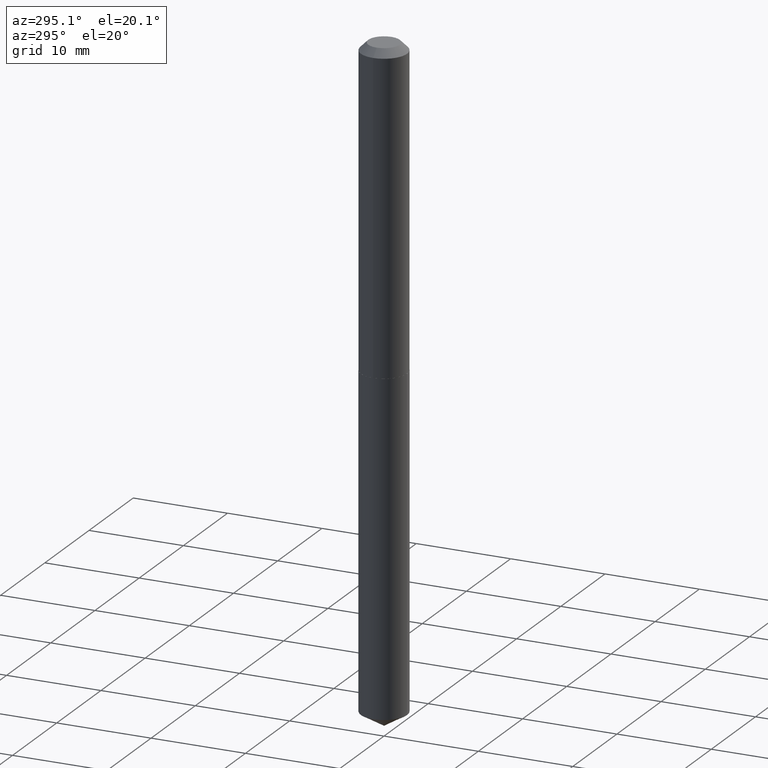
[diagram: clean part render]
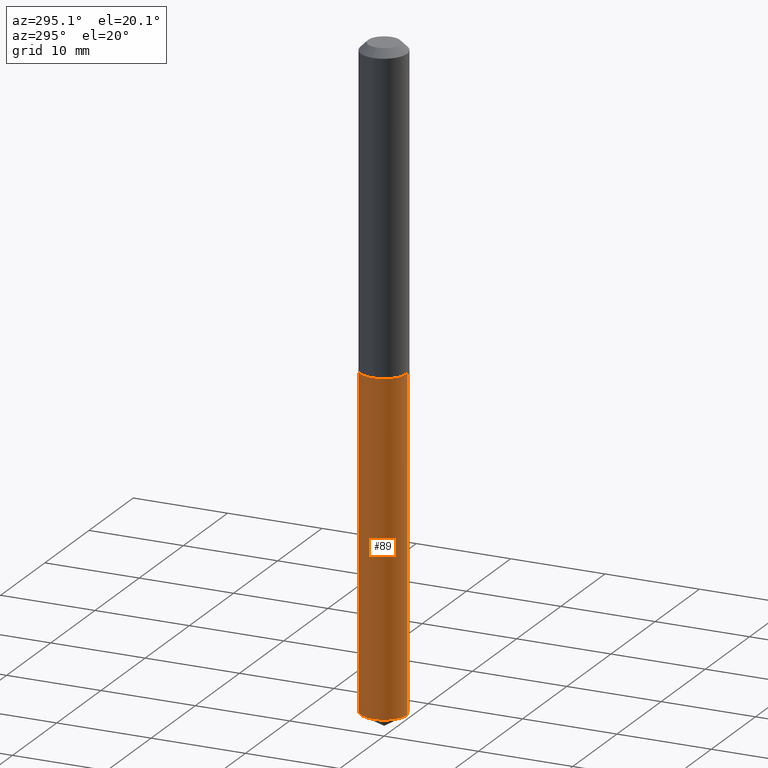
[diagram: same view with one face highlighted and labeled with its STEP entity id]
A machine part, auxiliary view. The second image highlights one B-rep face of the part: STEP entity #89.
In plain terms, the highlighted cylindrical surface (edge-blend (fillet) strip) has radius 2.4575 mm, axis along (-0, 0, 1).
Its self-contained STEP definition (entity closure, byte-faithful):
#4 = DIRECTION ( 'NONE',  ( -2.445415493139380021E-29, 3.491557686159059033E-15, 1.000000000000000000 ) ) ;
#14 = VERTEX_POINT ( 'NONE', #48 ) ;
#18 = ORIENTED_EDGE ( 'NONE', *, *, #98, .T. ) ;
#21 = CARTESIAN_POINT ( 'NONE',  ( -6.756016390660803673E-16, -0.09675000000000941180, -2.691866735109083031 ) ) ;
#29 = DIRECTION ( 'NONE',  ( -6.982962677686265922E-15, -1.000000000000000000, 2.823615497327403880E-15 ) ) ;
#32 = CARTESIAN_POINT ( 'NONE',  ( -6.756016390661139925E-16, -0.09675000000000461009, -1.318499999999999561 ) ) ;
#42 = AXIS2_PLACEMENT_3D ( 'NONE', #143, #367, #29 ) ;
#48 = CARTESIAN_POINT ( 'NONE',  ( 6.874500968479628186E-16, 0.09674999999999060740, -2.691866735109083919 ) ) ;
#51 = AXIS2_PLACEMENT_3D ( 'NONE', #167, #328, #146 ) ;
#60 = DIRECTION ( 'NONE',  ( -6.982962677686265922E-15, -1.000000000000000000, 2.823615497327403880E-15 ) ) ;
#63 = CARTESIAN_POINT ( 'NONE',  ( 6.874500968479290948E-16, 0.09674999999999539524, -1.318500000000000227 ) ) ;
#74 = VERTEX_POINT ( 'NONE', #114 ) ;
#78 = VERTEX_POINT ( 'NONE', #32 ) ;
#84 = VECTOR ( 'NONE', #229, 39.37007874015748143 ) ;
#89 = ADVANCED_FACE ( 'NONE', ( #235 ), #231, .T. ) ;
#98 = EDGE_CURVE ( 'NONE', #14, #315, #169, .T. ) ;
#114 = CARTESIAN_POINT ( 'NONE',  ( 6.874500968479629173E-16, 0.09674999999999539524, -1.318500000000000227 ) ) ;
#143 = CARTESIAN_POINT ( 'NONE',  ( 3.224350620955102598E-29, -4.603518145264687138E-15, -1.318499999999999783 ) ) ;
#146 = DIRECTION ( 'NONE',  ( -6.982962677686265922E-15, -1.000000000000000000, 5.647230994654807760E-15 ) ) ;
#167 = CARTESIAN_POINT ( 'NONE',  ( 6.582802912753103572E-29, -9.398707325149981117E-15, -2.691866735109083475 ) ) ;
#168 = EDGE_CURVE ( 'NONE', #74, #78, #207, .T. ) ;
#169 = CIRCLE ( 'NONE', #51, 0.09675000000000000266 ) ;
#187 = ORIENTED_EDGE ( 'NONE', *, *, #192, .F. ) ;
#192 = EDGE_CURVE ( 'NONE', #14, #74, #335, .T. ) ;
#207 = CIRCLE ( 'NONE', #42, 0.09675000000000000266 ) ;
#209 = VECTOR ( 'NONE', #4, 39.37007874015748143 ) ;
#210 = EDGE_LOOP ( 'NONE', ( #187, #18, #386, #344 ) ) ;
#229 = DIRECTION ( 'NONE',  ( -2.445415493139380021E-29, 3.491557686159059033E-15, 1.000000000000000000 ) ) ;
#231 = CYLINDRICAL_SURFACE ( 'NONE', #263, 0.09675000000000000266 ) ;
#235 = FACE_OUTER_BOUND ( 'NONE', #210, .T. ) ;
#262 = EDGE_CURVE ( 'NONE', #315, #78, #291, .T. ) ;
#263 = AXIS2_PLACEMENT_3D ( 'NONE', #364, #299, #60 ) ;
#291 = LINE ( 'NONE', #382, #84 ) ;
#299 = DIRECTION ( 'NONE',  ( -2.445415493139380021E-29, 3.491557686159059033E-15, 1.000000000000000000 ) ) ;
#315 = VERTEX_POINT ( 'NONE', #21 ) ;
#328 = DIRECTION ( 'NONE',  ( -2.445415493139380021E-29, 3.491557686159059033E-15, 1.000000000000000000 ) ) ;
#335 = LINE ( 'NONE', #63, #209 ) ;
#344 = ORIENTED_EDGE ( 'NONE', *, *, #168, .F. ) ;
#364 = CARTESIAN_POINT ( 'NONE',  ( 3.224350620955102598E-29, -4.603518145264687138E-15, -1.318499999999999783 ) ) ;
#367 = DIRECTION ( 'NONE',  ( -2.445415493139380021E-29, 3.491557686159059033E-15, 1.000000000000000000 ) ) ;
#382 = CARTESIAN_POINT ( 'NONE',  ( -6.756016390661139925E-16, -0.09675000000000461009, -1.318499999999999561 ) ) ;
#386 = ORIENTED_EDGE ( 'NONE', *, *, #262, .T. ) ;